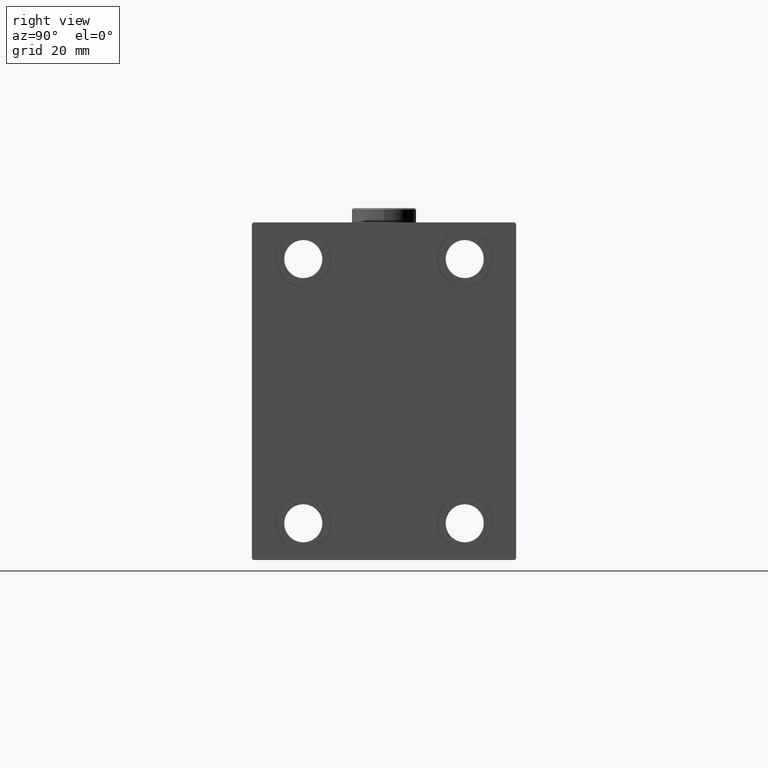
[diagram: clean part render]
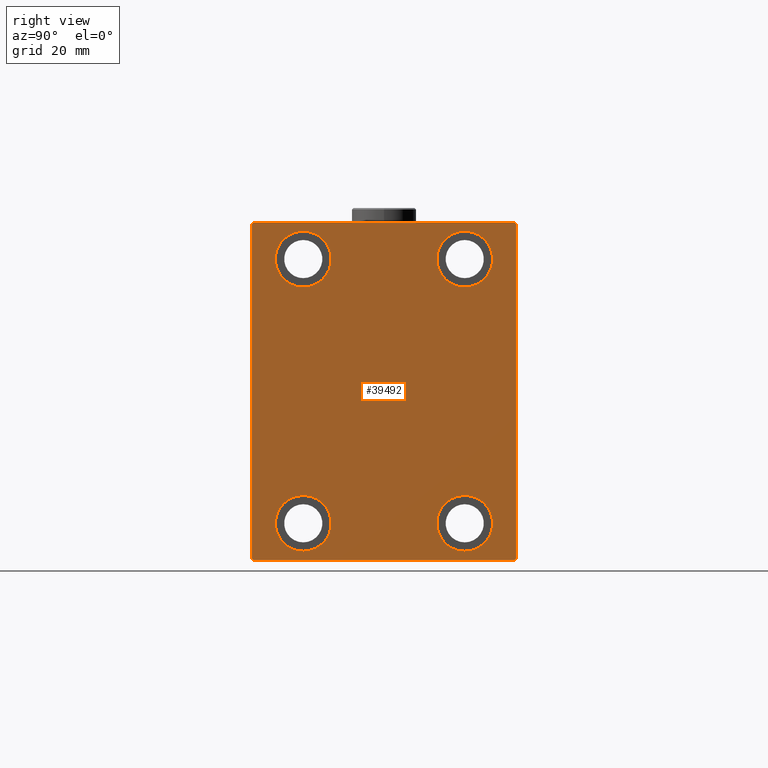
[diagram: same view with one face highlighted and labeled with its STEP entity id]
A machine part, right view. The second image highlights one B-rep face of the part: STEP entity #39492.
In plain terms, the highlighted planar face has unit normal (1, 0, 0).
Its self-contained STEP definition (entity closure, byte-faithful):
#330 = EDGE_CURVE ( 'NONE', #14321, #28138, #30246, .T. ) ;
#759 = CARTESIAN_POINT ( 'NONE',  ( 103.0000000000000000, 27.50000000000001066, 54.50000000000000711 ) ) ;
#807 = VERTEX_POINT ( 'NONE', #41643 ) ;
#976 = FACE_BOUND ( 'NONE', #2628, .T. ) ;
#1272 = VERTEX_POINT ( 'NONE', #26002 ) ;
#1386 = AXIS2_PLACEMENT_3D ( 'NONE', #28090, #47023, #24450 ) ;
#1423 = VECTOR ( 'NONE', #3415, 1000.000000000000000 ) ;
#1527 = CARTESIAN_POINT ( 'NONE',  ( 103.0000000000000000, -27.50000000000000000, -44.99999999999998579 ) ) ;
#1663 = EDGE_LOOP ( 'NONE', ( #36970, #34708, #40483, #17154, #35040, #10396, #30070, #20839 ) ) ;
#2084 = LINE ( 'NONE', #35048, #13744 ) ;
#2628 = EDGE_LOOP ( 'NONE', ( #31026, #31874 ) ) ;
#2833 = DIRECTION ( 'NONE',  ( 1.000000000000000000, 0.000000000000000000, 0.000000000000000000 ) ) ;
#2885 = DIRECTION ( 'NONE',  ( 0.000000000000000000, 0.000000000000000000, 1.000000000000000000 ) ) ;
#3147 = LINE ( 'NONE', #6308, #37463 ) ;
#3307 = DIRECTION ( 'NONE',  ( 0.000000000000000000, 0.000000000000000000, -1.000000000000000000 ) ) ;
#3409 = EDGE_CURVE ( 'NONE', #28138, #14321, #24289, .T. ) ;
#3415 = DIRECTION ( 'NONE',  ( 0.000000000000000000, -1.206764157201257045E-16, 1.000000000000000000 ) ) ;
#3901 = VERTEX_POINT ( 'NONE', #36175 ) ;
#4117 = CIRCLE ( 'NONE', #46719, 9.500000000000001776 ) ;
#4975 = EDGE_CURVE ( 'NONE', #24446, #33704, #43476, .T. ) ;
#5477 = DIRECTION ( 'NONE',  ( -1.000000000000000000, -0.000000000000000000, -0.000000000000000000 ) ) ;
#5654 = CARTESIAN_POINT ( 'NONE',  ( 103.0000000000000000, -45.00000000000000000, -57.00000000000003553 ) ) ;
#6067 = VERTEX_POINT ( 'NONE', #13882 ) ;
#6308 = CARTESIAN_POINT ( 'NONE',  ( 103.0000000000000000, 50.99999999999940314, -51.00000000000082423 ) ) ;
#6441 = DIRECTION ( 'NONE',  ( -1.000000000000000000, -0.000000000000000000, -0.000000000000000000 ) ) ;
#7326 = AXIS2_PLACEMENT_3D ( 'NONE', #10583, #2833, #3307 ) ;
#7933 = AXIS2_PLACEMENT_3D ( 'NONE', #12268, #5477, #16628 ) ;
#8229 = LINE ( 'NONE', #23022, #18920 ) ;
#8652 = DIRECTION ( 'NONE',  ( 0.000000000000000000, 0.000000000000000000, 1.000000000000000000 ) ) ;
#9014 = EDGE_CURVE ( 'NONE', #3901, #37363, #4117, .T. ) ;
#9023 = DIRECTION ( 'NONE',  ( 0.000000000000000000, 0.000000000000000000, 1.000000000000000000 ) ) ;
#9252 = ORIENTED_EDGE ( 'NONE', *, *, #330, .T. ) ;
#9360 = DIRECTION ( 'NONE',  ( 0.000000000000000000, 0.000000000000000000, 1.000000000000000000 ) ) ;
#9636 = CARTESIAN_POINT ( 'NONE',  ( 103.0000000000000000, -27.50000000000000000, -54.49999999999998579 ) ) ;
#9895 = CIRCLE ( 'NONE', #1386, 9.500000000000001776 ) ;
#10332 = PLANE ( 'NONE',  #7326 ) ;
#10396 = ORIENTED_EDGE ( 'NONE', *, *, #11009, .T. ) ;
#10583 = CARTESIAN_POINT ( 'NONE',  ( 103.0000000000000000, 0.000000000000000000, 0.000000000000000000 ) ) ;
#10926 = DIRECTION ( 'NONE',  ( -1.000000000000000000, -0.000000000000000000, -0.000000000000000000 ) ) ;
#11009 = EDGE_CURVE ( 'NONE', #26493, #1272, #3147, .T. ) ;
#11771 = DIRECTION ( 'NONE',  ( -0.000000000000000000, 0.7071067811865279218, -0.7071067811865671127 ) ) ;
#12268 = CARTESIAN_POINT ( 'NONE',  ( 103.0000000000000000, -27.49999999999998934, 45.00000000000000711 ) ) ;
#13614 = ORIENTED_EDGE ( 'NONE', *, *, #34270, .T. ) ;
#13744 = VECTOR ( 'NONE', #28015, 1000.000000000000000 ) ;
#13793 = LINE ( 'NONE', #43164, #35924 ) ;
#13882 = CARTESIAN_POINT ( 'NONE',  ( 103.0000000000000000, -45.00000000000000000, 56.99999999999996447 ) ) ;
#14026 = CARTESIAN_POINT ( 'NONE',  ( 103.0000000000000000, 27.50000000000001066, 45.00000000000000711 ) ) ;
#14321 = VERTEX_POINT ( 'NONE', #759 ) ;
#14612 = DIRECTION ( 'NONE',  ( 0.000000000000000000, 0.000000000000000000, 1.000000000000000000 ) ) ;
#15916 = CIRCLE ( 'NONE', #40727, 9.500000000000001776 ) ;
#16003 = FACE_BOUND ( 'NONE', #39017, .T. ) ;
#16628 = DIRECTION ( 'NONE',  ( 0.000000000000000000, 0.000000000000000000, 1.000000000000000000 ) ) ;
#17154 = ORIENTED_EDGE ( 'NONE', *, *, #40420, .T. ) ;
#17179 = CARTESIAN_POINT ( 'NONE',  ( 103.0000000000000000, 45.00000000000000000, 56.99999999999997868 ) ) ;
#17244 = EDGE_CURVE ( 'NONE', #31314, #18807, #32893, .T. ) ;
#17672 = EDGE_LOOP ( 'NONE', ( #28715, #47549 ) ) ;
#18145 = DIRECTION ( 'NONE',  ( -1.000000000000000000, -0.000000000000000000, -0.000000000000000000 ) ) ;
#18807 = VERTEX_POINT ( 'NONE', #34592 ) ;
#18920 = VECTOR ( 'NONE', #47817, 1000.000000000000000 ) ;
#19757 = EDGE_CURVE ( 'NONE', #33704, #24446, #15916, .T. ) ;
#19857 = CARTESIAN_POINT ( 'NONE',  ( 103.0000000000000000, -44.50000000000005684, -57.50000000000000711 ) ) ;
#20839 = ORIENTED_EDGE ( 'NONE', *, *, #34709, .T. ) ;
#21006 = DIRECTION ( 'NONE',  ( -1.000000000000000000, -0.000000000000000000, -0.000000000000000000 ) ) ;
#21490 = CARTESIAN_POINT ( 'NONE',  ( 103.0000000000000000, -27.50000000000000000, -44.99999999999998579 ) ) ;
#22584 = LINE ( 'NONE', #44444, #45146 ) ;
#22763 = EDGE_CURVE ( 'NONE', #807, #6067, #36328, .T. ) ;
#22973 = CARTESIAN_POINT ( 'NONE',  ( 103.0000000000000000, 27.49999999999998934, -44.99999999999998579 ) ) ;
#23022 = CARTESIAN_POINT ( 'NONE',  ( 103.0000000000000000, -45.00000000000000000, 57.49999999999999289 ) ) ;
#23866 = EDGE_CURVE ( 'NONE', #37304, #26493, #2084, .T. ) ;
#24289 = CIRCLE ( 'NONE', #35130, 9.500000000000001776 ) ;
#24446 = VERTEX_POINT ( 'NONE', #9636 ) ;
#24450 = DIRECTION ( 'NONE',  ( 0.000000000000000000, 0.000000000000000000, 1.000000000000000000 ) ) ;
#24865 = AXIS2_PLACEMENT_3D ( 'NONE', #14026, #18145, #2885 ) ;
#25617 = EDGE_CURVE ( 'NONE', #18807, #31314, #9895, .T. ) ;
#26002 = CARTESIAN_POINT ( 'NONE',  ( 103.0000000000000000, 45.00000000000001421, -57.00000000000003553 ) ) ;
#26187 = EDGE_CURVE ( 'NONE', #1272, #35166, #28396, .T. ) ;
#26493 = VERTEX_POINT ( 'NONE', #40889 ) ;
#26529 = CIRCLE ( 'NONE', #7933, 9.500000000000001776 ) ;
#26903 = VERTEX_POINT ( 'NONE', #47388 ) ;
#27370 = CARTESIAN_POINT ( 'NONE',  ( 103.0000000000000000, -27.49999999999998934, 35.50000000000000711 ) ) ;
#27977 = AXIS2_PLACEMENT_3D ( 'NONE', #1527, #45195, #9023 ) ;
#28015 = DIRECTION ( 'NONE',  ( 0.000000000000000000, 1.000000000000000000, 0.000000000000000000 ) ) ;
#28090 = CARTESIAN_POINT ( 'NONE',  ( 103.0000000000000000, 27.49999999999998934, -44.99999999999998579 ) ) ;
#28138 = VERTEX_POINT ( 'NONE', #39769 ) ;
#28325 = CARTESIAN_POINT ( 'NONE',  ( 103.0000000000000000, -51.00000000000122924, 50.99999999999839417 ) ) ;
#28396 = LINE ( 'NONE', #36639, #1423 ) ;
#28715 = ORIENTED_EDGE ( 'NONE', *, *, #4975, .T. ) ;
#29028 = VECTOR ( 'NONE', #11771, 1000.000000000000000 ) ;
#29120 = DIRECTION ( 'NONE',  ( 0.000000000000000000, 0.000000000000000000, 1.000000000000000000 ) ) ;
#30070 = ORIENTED_EDGE ( 'NONE', *, *, #26187, .T. ) ;
#30246 = CIRCLE ( 'NONE', #24865, 9.500000000000001776 ) ;
#30781 = FACE_BOUND ( 'NONE', #17672, .T. ) ;
#31026 = ORIENTED_EDGE ( 'NONE', *, *, #17244, .T. ) ;
#31314 = VERTEX_POINT ( 'NONE', #40006 ) ;
#31460 = DIRECTION ( 'NONE',  ( -1.000000000000000000, -0.000000000000000000, -0.000000000000000000 ) ) ;
#31874 = ORIENTED_EDGE ( 'NONE', *, *, #25617, .T. ) ;
#32208 = DIRECTION ( 'NONE',  ( 0.000000000000000000, -0.7071067811865279218, -0.7071067811865672237 ) ) ;
#32893 = CIRCLE ( 'NONE', #45284, 9.500000000000001776 ) ;
#33276 = DIRECTION ( 'NONE',  ( -0.000000000000000000, -0.7071067811865474617, 0.7071067811865474617 ) ) ;
#33471 = CARTESIAN_POINT ( 'NONE',  ( 103.0000000000000000, 27.50000000000001066, 45.00000000000000711 ) ) ;
#33704 = VERTEX_POINT ( 'NONE', #44277 ) ;
#33751 = CARTESIAN_POINT ( 'NONE',  ( 103.0000000000000000, -27.49999999999998934, 45.00000000000000711 ) ) ;
#34270 = EDGE_CURVE ( 'NONE', #37363, #3901, #26529, .T. ) ;
#34421 = FACE_BOUND ( 'NONE', #43530, .T. ) ;
#34592 = CARTESIAN_POINT ( 'NONE',  ( 103.0000000000000000, 27.49999999999998934, -35.49999999999998579 ) ) ;
#34709 = EDGE_CURVE ( 'NONE', #35166, #26903, #22584, .T. ) ;
#34708 = ORIENTED_EDGE ( 'NONE', *, *, #22763, .T. ) ;
#35040 = ORIENTED_EDGE ( 'NONE', *, *, #23866, .T. ) ;
#35048 = CARTESIAN_POINT ( 'NONE',  ( 103.0000000000000000, -45.00000000000000000, -57.50000000000000711 ) ) ;
#35130 = AXIS2_PLACEMENT_3D ( 'NONE', #33471, #10926, #29120 ) ;
#35166 = VERTEX_POINT ( 'NONE', #17179 ) ;
#35924 = VECTOR ( 'NONE', #42670, 1000.000000000000000 ) ;
#36175 = CARTESIAN_POINT ( 'NONE',  ( 103.0000000000000000, -27.49999999999998934, 54.50000000000000711 ) ) ;
#36328 = LINE ( 'NONE', #28325, #37732 ) ;
#36612 = DIRECTION ( 'NONE',  ( -0.000000000000000000, 0.7071067811865573427, 0.7071067811865376918 ) ) ;
#36639 = CARTESIAN_POINT ( 'NONE',  ( 103.0000000000000000, 45.00000000000001421, -57.50000000000000711 ) ) ;
#36970 = ORIENTED_EDGE ( 'NONE', *, *, #38327, .T. ) ;
#37253 = LINE ( 'NONE', #44786, #29028 ) ;
#37304 = VERTEX_POINT ( 'NONE', #19857 ) ;
#37363 = VERTEX_POINT ( 'NONE', #27370 ) ;
#37463 = VECTOR ( 'NONE', #36612, 1000.000000000000114 ) ;
#37732 = VECTOR ( 'NONE', #32208, 1000.000000000000000 ) ;
#38327 = EDGE_CURVE ( 'NONE', #26903, #807, #13793, .T. ) ;
#39017 = EDGE_LOOP ( 'NONE', ( #45424, #9252 ) ) ;
#39393 = EDGE_CURVE ( 'NONE', #6067, #44825, #8229, .T. ) ;
#39492 = ADVANCED_FACE ( 'NONE', ( #976, #34421, #16003, #30781, #45601 ), #10332, .T. ) ;
#39769 = CARTESIAN_POINT ( 'NONE',  ( 103.0000000000000000, 27.50000000000001066, 35.50000000000000711 ) ) ;
#40006 = CARTESIAN_POINT ( 'NONE',  ( 103.0000000000000000, 27.49999999999998934, -54.49999999999998579 ) ) ;
#40420 = EDGE_CURVE ( 'NONE', #44825, #37304, #37253, .T. ) ;
#40483 = ORIENTED_EDGE ( 'NONE', *, *, #39393, .T. ) ;
#40727 = AXIS2_PLACEMENT_3D ( 'NONE', #21490, #21006, #9360 ) ;
#40844 = ORIENTED_EDGE ( 'NONE', *, *, #9014, .T. ) ;
#40889 = CARTESIAN_POINT ( 'NONE',  ( 103.0000000000000000, 44.50000000000000000, -57.50000000000000711 ) ) ;
#41643 = CARTESIAN_POINT ( 'NONE',  ( 103.0000000000000000, -44.49999999999997158, 57.49999999999999289 ) ) ;
#42670 = DIRECTION ( 'NONE',  ( 0.000000000000000000, -1.000000000000000000, -1.541976423090495387E-16 ) ) ;
#43164 = CARTESIAN_POINT ( 'NONE',  ( 103.0000000000000000, 45.00000000000000000, 57.50000000000000711 ) ) ;
#43476 = CIRCLE ( 'NONE', #27977, 9.500000000000001776 ) ;
#43530 = EDGE_LOOP ( 'NONE', ( #13614, #40844 ) ) ;
#44277 = CARTESIAN_POINT ( 'NONE',  ( 103.0000000000000000, -27.50000000000000000, -35.49999999999998579 ) ) ;
#44444 = CARTESIAN_POINT ( 'NONE',  ( 103.0000000000000000, 51.00000000000000000, 51.00000000000000000 ) ) ;
#44786 = CARTESIAN_POINT ( 'NONE',  ( 103.0000000000000000, -51.00000000000125766, -50.99999999999843681 ) ) ;
#44825 = VERTEX_POINT ( 'NONE', #5654 ) ;
#45146 = VECTOR ( 'NONE', #33276, 1000.000000000000114 ) ;
#45195 = DIRECTION ( 'NONE',  ( -1.000000000000000000, -0.000000000000000000, -0.000000000000000000 ) ) ;
#45284 = AXIS2_PLACEMENT_3D ( 'NONE', #22973, #31460, #8652 ) ;
#45424 = ORIENTED_EDGE ( 'NONE', *, *, #3409, .T. ) ;
#45601 = FACE_OUTER_BOUND ( 'NONE', #1663, .T. ) ;
#46719 = AXIS2_PLACEMENT_3D ( 'NONE', #33751, #6441, #14612 ) ;
#47023 = DIRECTION ( 'NONE',  ( -1.000000000000000000, -0.000000000000000000, -0.000000000000000000 ) ) ;
#47388 = CARTESIAN_POINT ( 'NONE',  ( 103.0000000000000000, 44.50000000000000000, 57.50000000000000711 ) ) ;
#47549 = ORIENTED_EDGE ( 'NONE', *, *, #19757, .T. ) ;
#47817 = DIRECTION ( 'NONE',  ( 0.000000000000000000, 0.000000000000000000, -1.000000000000000000 ) ) ;